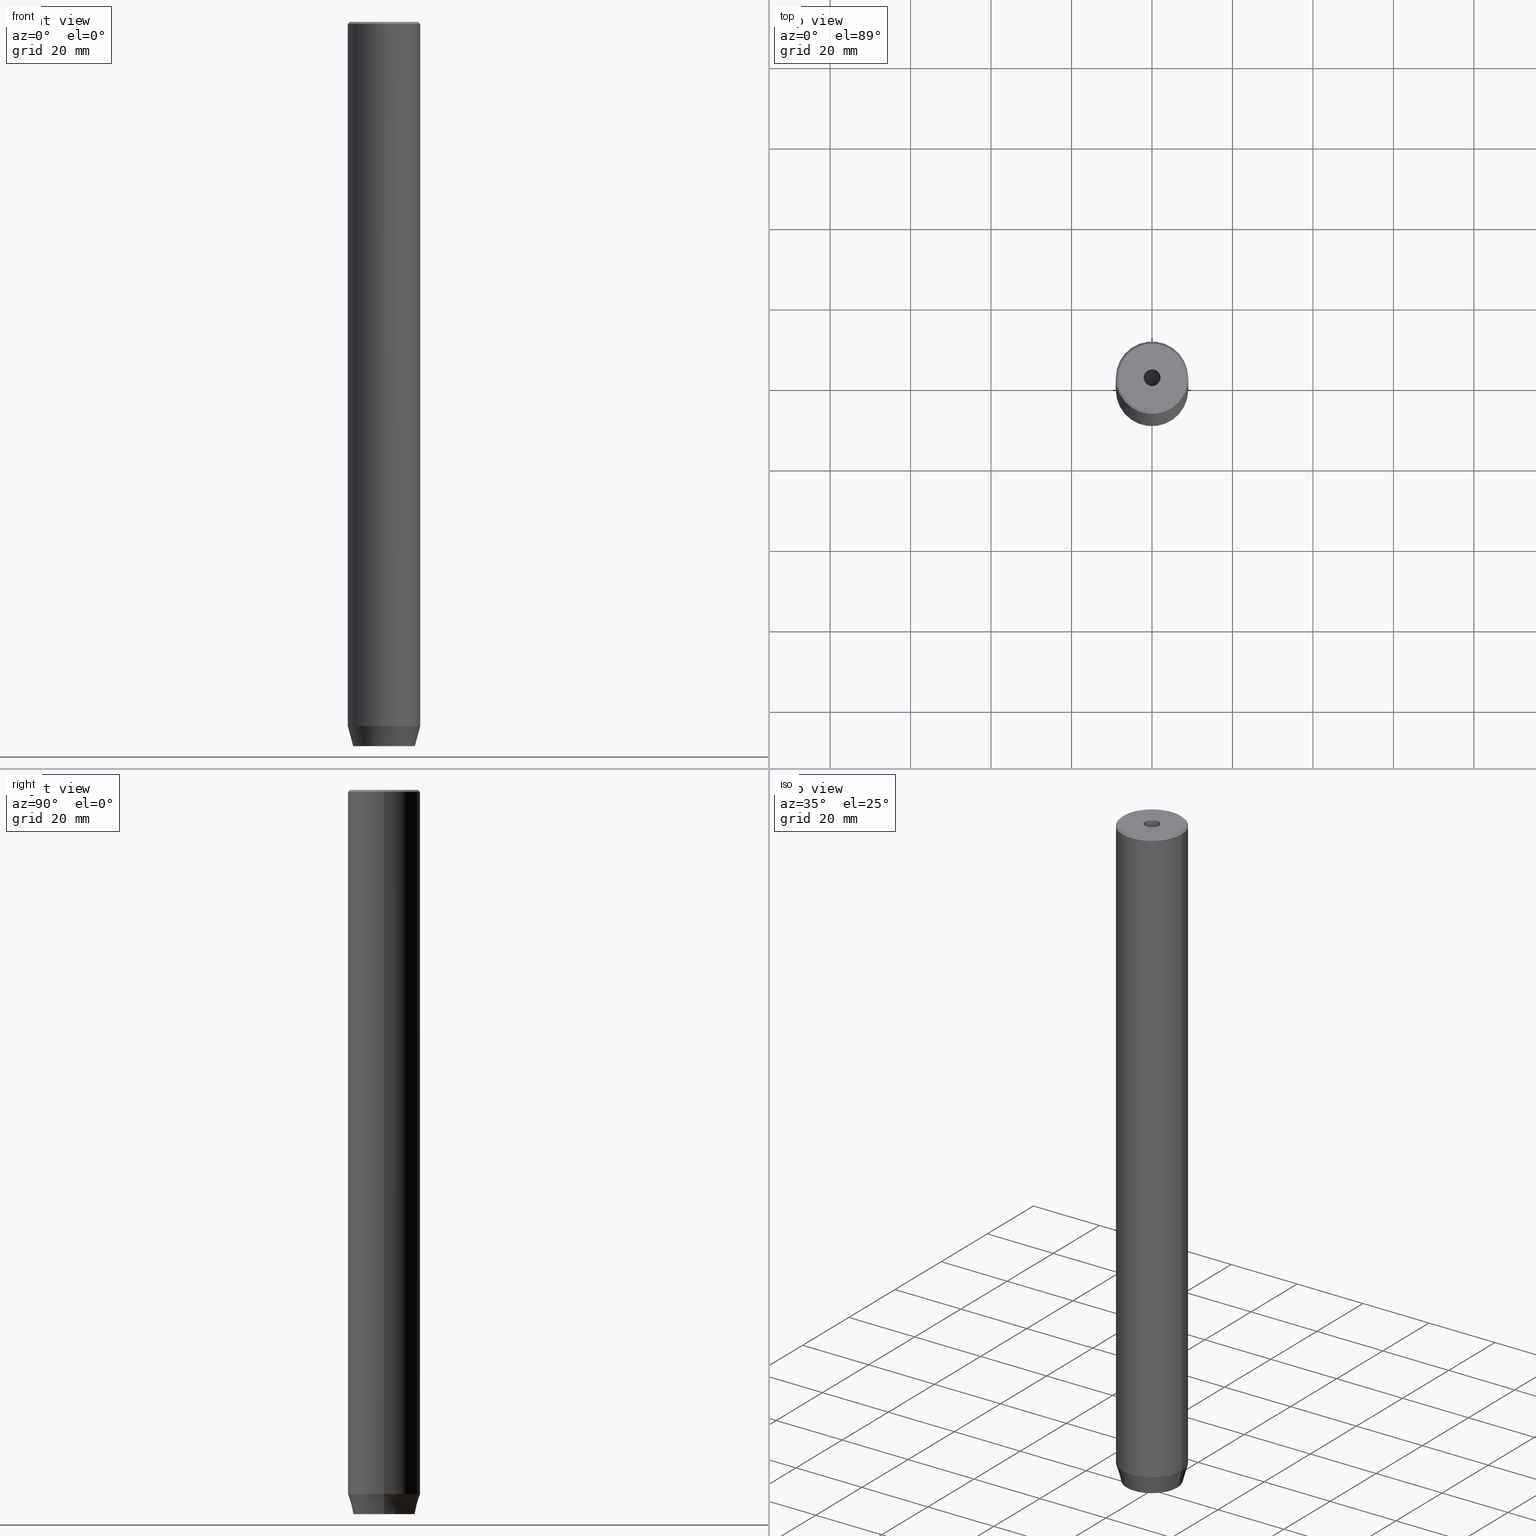
[diagram: canonical four-view strip — front | top / right | iso, engineering-drawing reading convention]
A machine part, canonical four-view strip (front | top / right | iso — engineering-drawing reading convention). The complete STEP part file that produces these views, byte-faithful:
ISO-10303-21;
HEADER;
FILE_DESCRIPTION (( 'STEP AP203' ),
    '1' );
FILE_NAME ('a137.STEP',
    '2024-01-02T19:07:23',
    ( '' ),
    ( '' ),
    'SwSTEP 2.0',
    'SolidWorks 2019',
    '' );
FILE_SCHEMA (( 'CONFIG_CONTROL_DESIGN' ));
ENDSEC;

DATA;
#1 = EDGE_CURVE ( 'NONE', #370, #378, #107, .T. ) ;
#2 = DIRECTION ( 'NONE',  ( 1.000000000000000000, 0.000000000000000000, 0.000000000000000000 ) ) ;
#3 = ORIENTED_EDGE ( 'NONE', *, *, #33, .F. ) ;
#4 = DIRECTION ( 'NONE',  ( -0.8660254037844385966, 0.5000000000000001110, 0.000000000000000000 ) ) ;
#5 = ORIENTED_EDGE ( 'NONE', *, *, #167, .F. ) ;
#6 = ORIENTED_EDGE ( 'NONE', *, *, #367, .F. ) ;
#7 = VECTOR ( 'NONE', #493, 1000.000000000000000 ) ;
#8 =( NAMED_UNIT ( * ) SI_UNIT ( $, .STERADIAN. ) SOLID_ANGLE_UNIT ( ) );
#9 = EDGE_LOOP ( 'NONE', ( #468, #83, #516, #12 ) ) ;
#10 = EDGE_CURVE ( 'NONE', #388, #80, #296, .T. ) ;
#11 = ORIENTED_EDGE ( 'NONE', *, *, #98, .F. ) ;
#12 = ORIENTED_EDGE ( 'NONE', *, *, #276, .T. ) ;
#13 = VERTEX_POINT ( 'NONE', #200 ) ;
#14 = ORIENTED_EDGE ( 'NONE', *, *, #530, .F. ) ;
#15 = ADVANCED_FACE ( 'NONE', ( #485 ), #173, .T. ) ;
#16 = CARTESIAN_POINT ( 'NONE',  ( 0.000000000000000000, 0.000000000000000000, -20.00000000000000000 ) ) ;
#17 = CARTESIAN_POINT ( 'NONE',  ( -1.499999999999999556, 2.598076211353316012, -177.1999999999999886 ) ) ;
#18 = ORIENTED_EDGE ( 'NONE', *, *, #541, .F. ) ;
#19 = VERTEX_POINT ( 'NONE', #318 ) ;
#20 = AXIS2_PLACEMENT_3D ( 'NONE', #327, #317, #364 ) ;
#21 = DIRECTION ( 'NONE',  ( -0.000000000000000000, -0.000000000000000000, 1.000000000000000000 ) ) ;
#22 = EDGE_CURVE ( 'NONE', #482, #499, #498, .T. ) ;
#23 = DIRECTION ( 'NONE',  ( -0.000000000000000000, -0.000000000000000000, 1.000000000000000000 ) ) ;
#24 = VERTEX_POINT ( 'NONE', #328 ) ;
#25 = DIRECTION ( 'NONE',  ( 0.8571673007021111124, 0.000000000000000000, 0.5150380749100562650 ) ) ;
#26 = DIRECTION ( 'NONE',  ( -0.000000000000000000, -0.000000000000000000, -1.000000000000000000 ) ) ;
#27 = AXIS2_PLACEMENT_3D ( 'NONE', #394, #562, #309 ) ;
#28 = DIRECTION ( 'NONE',  ( -0.000000000000000000, -0.000000000000000000, 1.000000000000000000 ) ) ;
#29 = DIRECTION ( 'NONE',  ( -0.5000000000000001110, -0.8660254037844385966, 0.000000000000000000 ) ) ;
#30 = FACE_OUTER_BOUND ( 'NONE', #535, .T. ) ;
#31 = CARTESIAN_POINT ( 'NONE',  ( -3.000000000000000444, -7.511572993685800087E-16, -177.1999999999999886 ) ) ;
#32 = CONICAL_SURFACE ( 'NONE', #195, 8.499999999999980460, 0.7853981633974447263 ) ;
#33 = EDGE_CURVE ( 'NONE', #266, #325, #50, .T. ) ;
#34 = DATE_TIME_ROLE ( 'classification_date' ) ;
#35 = DIRECTION ( 'NONE',  ( 0.000000000000000000, 0.000000000000000000, -1.000000000000000000 ) ) ;
#36 = ORIENTED_EDGE ( 'NONE', *, *, #402, .T. ) ;
#37 = PERSON_AND_ORGANIZATION_ROLE ( 'creator' ) ;
#38 = LINE ( 'NONE', #343, #577 ) ;
#39 = CARTESIAN_POINT ( 'NONE',  ( 0.000000000000000000, 0.000000000000000000, 0.000000000000000000 ) ) ;
#40 = EDGE_CURVE ( 'NONE', #24, #482, #228, .T. ) ;
#41 = CARTESIAN_POINT ( 'NONE',  ( -3.000000000000000888, 1.732050807568876527, -180.0000000000000000 ) ) ;
#42 = AXIS2_PLACEMENT_3D ( 'NONE', #583, #178, #539 ) ;
#43 = LINE ( 'NONE', #92, #575 ) ;
#44 = FACE_OUTER_BOUND ( 'NONE', #190, .T. ) ;
#45 = FACE_OUTER_BOUND ( 'NONE', #424, .T. ) ;
#46 = VECTOR ( 'NONE', #416, 1000.000000000000000 ) ;
#47 = EDGE_CURVE ( 'NONE', #520, #265, #547, .T. ) ;
#48 = ORIENTED_EDGE ( 'NONE', *, *, #385, .F. ) ;
#49 = CARTESIAN_POINT ( 'NONE',  ( 0.000000000000000000, 0.000000000000000000, -20.00000000000000000 ) ) ;
#50 = LINE ( 'NONE', #101, #363 ) ;
#51 = DIRECTION ( 'NONE',  ( 0.8660254037844387076, 0.4999999999999999445, 0.000000000000000000 ) ) ;
#52 = ORIENTED_EDGE ( 'NONE', *, *, #514, .F. ) ;
#53 = AXIS2_PLACEMENT_3D ( 'NONE', #497, #129, #320 ) ;
#54 = APPROVAL_PERSON_ORGANIZATION ( #393, #415, #243 ) ;
#55 = CONICAL_SURFACE ( 'NONE', #123, 2.099999999999996092, 1.029744258676652091 ) ;
#56 = ORIENTED_EDGE ( 'NONE', *, *, #145, .F. ) ;
#57 = DIRECTION ( 'NONE',  ( 1.000000000000000000, 0.000000000000000000, 0.000000000000000000 ) ) ;
#58 = ORIENTED_EDGE ( 'NONE', *, *, #235, .F. ) ;
#59 = PRODUCT ( 'a137', 'a137', '', ( #144 ) ) ;
#60 = AXIS2_PLACEMENT_3D ( 'NONE', #163, #260, #481 ) ;
#61 = CARTESIAN_POINT ( 'NONE',  ( 9.000000000000000000, 0.000000000000000000, 0.000000000000000000 ) ) ;
#62 = VERTEX_POINT ( 'NONE', #413 ) ;
#63 = EDGE_LOOP ( 'NONE', ( #58, #553 ) ) ;
#64 = DIRECTION ( 'NONE',  ( 1.000000000000000000, 0.000000000000000000, 0.000000000000000000 ) ) ;
#65 = CARTESIAN_POINT ( 'NONE',  ( 2.099999999999996092, 0.000000000000000000, -20.00000000000000000 ) ) ;
#66 = ORIENTED_EDGE ( 'NONE', *, *, #490, .F. ) ;
#67 = DATE_AND_TIME ( #438, #404 ) ;
#68 = APPROVAL_PERSON_ORGANIZATION ( #471, #457, #162 ) ;
#69 = VECTOR ( 'NONE', #199, 1000.000000000000000 ) ;
#70 = CARTESIAN_POINT ( 'NONE',  ( -5.207640850796248781E-15, 0.000000000000000000, -21.26180729995787999 ) ) ;
#71 = CYLINDRICAL_SURFACE ( 'NONE', #565, 9.000000000000000000 ) ;
#72 = CARTESIAN_POINT ( 'NONE',  ( -1.084202172485504434E-16, 3.464101615137754830, -177.1999999999999886 ) ) ;
#73 = DIRECTION ( 'NONE',  ( -0.000000000000000000, -0.000000000000000000, 1.000000000000000000 ) ) ;
#74 = LINE ( 'NONE', #358, #401 ) ;
#75 = EDGE_CURVE ( 'NONE', #19, #280, #219, .T. ) ;
#76 = CARTESIAN_POINT ( 'NONE',  ( 8.499999999999980460, 1.071565949253932744E-15, 0.000000000000000000 ) ) ;
#77 = PERSON_AND_ORGANIZATION ( #561, #96 ) ;
#78 = CARTESIAN_POINT ( 'NONE',  ( 0.000000000000000000, 3.464101615137754386, -180.0000000000000000 ) ) ;
#79 = AXIS2_PLACEMENT_3D ( 'NONE', #232, #461, #291 ) ;
#80 = VERTEX_POINT ( 'NONE', #76 ) ;
#81 = CIRCLE ( 'NONE', #27, 9.000000000000000000 ) ;
#82 = EDGE_CURVE ( 'NONE', #388, #474, #261, .T. ) ;
#83 = ORIENTED_EDGE ( 'NONE', *, *, #390, .T. ) ;
#84 = DATE_AND_TIME ( #312, #418 ) ;
#85 = DIRECTION ( 'NONE',  ( 1.000000000000000000, 0.000000000000000000, 0.000000000000000000 ) ) ;
#86 = LINE ( 'NONE', #405, #259 ) ;
#87 = LINE ( 'NONE', #277, #159 ) ;
#88 = CIRCLE ( 'NONE', #417, 9.000000000000000000 ) ;
#89 = ORIENTED_EDGE ( 'NONE', *, *, #157, .T. ) ;
#90 = DIRECTION ( 'NONE',  ( -0.000000000000000000, -0.000000000000000000, 1.000000000000000000 ) ) ;
#91 = CARTESIAN_POINT ( 'NONE',  ( -2.168404344971008868E-16, -3.464101615137754830, -177.1999999999999886 ) ) ;
#92 = CARTESIAN_POINT ( 'NONE',  ( -1.500000000000000666, -2.598076211353316456, -180.0000000000000000 ) ) ;
#93 = CC_DESIGN_PERSON_AND_ORGANIZATION_ASSIGNMENT ( #569, #114, ( #330 ) ) ;
#94 = DIRECTION ( 'NONE',  ( 0.5000000000000001110, 0.8660254037844385966, -0.000000000000000000 ) ) ;
#95 = CARTESIAN_POINT ( 'NONE',  ( 1.500000000000000222, -2.598076211353315568, -177.1999999999999886 ) ) ;
#96 = ORGANIZATION ( 'NEUR�EN�', 'NEUR�EN�', '' ) ;
#97 = VECTOR ( 'NONE', #111, 1000.000000000000000 ) ;
#98 = EDGE_CURVE ( 'NONE', #255, #520, #205, .T. ) ;
#99 = ORIENTED_EDGE ( 'NONE', *, *, #139, .F. ) ;
#100 = DIRECTION ( 'NONE',  ( -0.000000000000000000, -0.000000000000000000, 1.000000000000000000 ) ) ;
#101 = CARTESIAN_POINT ( 'NONE',  ( 1.500000000000000222, 2.598076211353315568, -177.1999999999999886 ) ) ;
#102 = ORIENTED_EDGE ( 'NONE', *, *, #556, .T. ) ;
#103 = AXIS2_PLACEMENT_3D ( 'NONE', #16, #230, #505 ) ;
#104 = CARTESIAN_POINT ( 'NONE',  ( 1.500000000000000222, 2.598076211353315568, -180.0000000000000000 ) ) ;
#105 = ORIENTED_EDGE ( 'NONE', *, *, #75, .T. ) ;
#106 = LINE ( 'NONE', #229, #376 ) ;
#107 = LINE ( 'NONE', #579, #274 ) ;
#108 = ADVANCED_FACE ( 'NONE', ( #201 ), #55, .F. ) ;
#109 = ORIENTED_EDGE ( 'NONE', *, *, #198, .T. ) ;
#110 = CIRCLE ( 'NONE', #445, 2.099999999999998757 ) ;
#111 = DIRECTION ( 'NONE',  ( -0.8571673007021111124, 1.049727191138617217E-16, 0.5150380749100562650 ) ) ;
#112 = LINE ( 'NONE', #171, #161 ) ;
#113 = DIRECTION ( 'NONE',  ( -0.000000000000000000, -0.000000000000000000, 1.000000000000000000 ) ) ;
#114 = PERSON_AND_ORGANIZATION_ROLE ( 'design_supplier' ) ;
#115 = ORIENTED_EDGE ( 'NONE', *, *, #329, .T. ) ;
#116 = FACE_OUTER_BOUND ( 'NONE', #132, .T. ) ;
#117 = ORIENTED_EDGE ( 'NONE', *, *, #244, .F. ) ;
#118 = CARTESIAN_POINT ( 'NONE',  ( -7.660254037844380193, 1.020146339021394272E-15, -180.0000000000000000 ) ) ;
#119 = EDGE_CURVE ( 'NONE', #280, #19, #532, .T. ) ;
#120 = COORDINATED_UNIVERSAL_TIME_OFFSET ( 1, 0, .AHEAD. ) ;
#121 = FACE_OUTER_BOUND ( 'NONE', #554, .T. ) ;
#122 = CARTESIAN_POINT ( 'NONE',  ( 0.000000000000000000, 0.000000000000000000, -0.5000000000000229816 ) ) ;
#123 = AXIS2_PLACEMENT_3D ( 'NONE', #207, #73, #428 ) ;
#124 = ORIENTED_EDGE ( 'NONE', *, *, #204, .F. ) ;
#125 = DIRECTION ( 'NONE',  ( -0.000000000000000000, -0.000000000000000000, 1.000000000000000000 ) ) ;
#126 = ADVANCED_FACE ( 'NONE', ( #30 ), #558, .F. ) ;
#127 = DIRECTION ( 'NONE',  ( 1.000000000000000000, 0.000000000000000000, 0.000000000000000000 ) ) ;
#128 = DIRECTION ( 'NONE',  ( -0.000000000000000000, -0.000000000000000000, 1.000000000000000000 ) ) ;
#129 = DIRECTION ( 'NONE',  ( 0.000000000000000000, -0.000000000000000000, 1.000000000000000000 ) ) ;
#130 = ORIENTED_EDGE ( 'NONE', *, *, #119, .F. ) ;
#131 = DIRECTION ( 'NONE',  ( -0.8660254037844385966, 0.5000000000000001110, 0.000000000000000000 ) ) ;
#132 = EDGE_LOOP ( 'NONE', ( #117, #248, #492, #464 ) ) ;
#133 = CIRCLE ( 'NONE', #210, 2.099999999999996092 ) ;
#134 = CC_DESIGN_PERSON_AND_ORGANIZATION_ASSIGNMENT ( #466, #151, ( #59 ) ) ;
#135 = CARTESIAN_POINT ( 'NONE',  ( 9.000000000000000000, 0.000000000000000000, -175.0000000000000000 ) ) ;
#136 = FACE_OUTER_BOUND ( 'NONE', #406, .T. ) ;
#137 = FACE_BOUND ( 'NONE', #298, .T. ) ;
#138 = ORIENTED_EDGE ( 'NONE', *, *, #426, .T. ) ;
#139 = EDGE_CURVE ( 'NONE', #240, #62, #146, .T. ) ;
#140 = CC_DESIGN_APPROVAL ( #457, ( #330 ) ) ;
#141 = LINE ( 'NONE', #379, #584 ) ;
#142 = EDGE_LOOP ( 'NONE', ( #423, #391 ) ) ;
#143 = CLOSED_SHELL ( 'NONE', ( #310, #339, #454, #214, #15, #570, #399, #192, #552, #218, #126, #334, #256, #262, #449, #486, #371, #108, #355 ) ) ;
#144 = MECHANICAL_CONTEXT ( 'NONE', #169, 'mechanical' ) ;
#145 = EDGE_CURVE ( 'NONE', #234, #266, #245, .T. ) ;
#146 = LINE ( 'NONE', #104, #69 ) ;
#147 = DIRECTION ( 'NONE',  ( -0.000000000000000000, -0.000000000000000000, 1.000000000000000000 ) ) ;
#148 = ORIENTED_EDGE ( 'NONE', *, *, #244, .T. ) ;
#149 = ORIENTED_EDGE ( 'NONE', *, *, #297, .F. ) ;
#150 =( GEOMETRIC_REPRESENTATION_CONTEXT ( 3 ) GLOBAL_UNCERTAINTY_ASSIGNED_CONTEXT ( ( #269 ) ) GLOBAL_UNIT_ASSIGNED_CONTEXT ( ( #384, #421, #8 ) ) REPRESENTATION_CONTEXT ( 'NONE', 'WORKASPACE' ) );
#151 = PERSON_AND_ORGANIZATION_ROLE ( 'design_owner' ) ;
#152 = SECURITY_CLASSIFICATION_LEVEL ( 'unclassified' ) ;
#153 = LINE ( 'NONE', #517, #578 ) ;
#154 = APPROVAL_ROLE ( '' ) ;
#155 = DIRECTION ( 'NONE',  ( -0.000000000000000000, -0.000000000000000000, -1.000000000000000000 ) ) ;
#156 = CARTESIAN_POINT ( 'NONE',  ( 0.000000000000000000, 0.000000000000000000, -175.0000000000000000 ) ) ;
#157 = EDGE_CURVE ( 'NONE', #266, #240, #153, .T. ) ;
#158 = ORIENTED_EDGE ( 'NONE', *, *, #47, .T. ) ;
#159 = VECTOR ( 'NONE', #273, 1000.000000000000000 ) ;
#160 = CARTESIAN_POINT ( 'NONE',  ( 9.000000000000000000, 0.000000000000000000, -0.5000000000000229816 ) ) ;
#161 = VECTOR ( 'NONE', #26, 1000.000000000000000 ) ;
#162 = APPROVAL_ROLE ( '' ) ;
#163 = CARTESIAN_POINT ( 'NONE',  ( 0.000000000000000000, 0.000000000000000000, 0.000000000000000000 ) ) ;
#164 = DIRECTION ( 'NONE',  ( 1.000000000000000000, 0.000000000000000000, 0.000000000000000000 ) ) ;
#165 = ORIENTED_EDGE ( 'NONE', *, *, #22, .T. ) ;
#166 = DATE_TIME_ROLE ( 'creation_date' ) ;
#167 = EDGE_CURVE ( 'NONE', #255, #247, #425, .T. ) ;
#168 = DIRECTION ( 'NONE',  ( 2.503857664561933362E-16, -1.000000000000000000, 0.000000000000000000 ) ) ;
#169 = APPLICATION_CONTEXT ( 'configuration controlled 3d designs of mechanical parts and assemblies' ) ;
#170 = ORIENTED_EDGE ( 'NONE', *, *, #350, .T. ) ;
#171 = CARTESIAN_POINT ( 'NONE',  ( 3.000000000000000000, 1.732050807568876527, -177.1999999999999886 ) ) ;
#172 = CIRCLE ( 'NONE', #279, 9.000000000000000000 ) ;
#173 = CYLINDRICAL_SURFACE ( 'NONE', #267, 9.000000000000000000 ) ;
#174 = CARTESIAN_POINT ( 'NONE',  ( 3.000000000000000000, -1.732050807568876527, -177.1999999999999886 ) ) ;
#175 = VECTOR ( 'NONE', #293, 1000.000000000000000 ) ;
#176 = CYLINDRICAL_SURFACE ( 'NONE', #344, 2.099999999999997424 ) ;
#177 = EDGE_LOOP ( 'NONE', ( #184, #130 ) ) ;
#178 = DIRECTION ( 'NONE',  ( 0.000000000000000000, 0.000000000000000000, -1.000000000000000000 ) ) ;
#179 = AXIS2_PLACEMENT_3D ( 'NONE', #270, #502, #446 ) ;
#180 = AXIS2_PLACEMENT_3D ( 'NONE', #529, #206, #477 ) ;
#181 = DIRECTION ( 'NONE',  ( -0.000000000000000000, -0.000000000000000000, -1.000000000000000000 ) ) ;
#182 = CARTESIAN_POINT ( 'NONE',  ( 3.000000000000000000, 0.000000000000000000, -177.1999999999999886 ) ) ;
#183 = CC_DESIGN_DATE_AND_TIME_ASSIGNMENT ( #340, #166, ( #519 ) ) ;
#184 = ORIENTED_EDGE ( 'NONE', *, *, #75, .F. ) ;
#185 = DIRECTION ( 'NONE',  ( 1.000000000000000000, 0.000000000000000000, 0.000000000000000000 ) ) ;
#186 = ORIENTED_EDGE ( 'NONE', *, *, #441, .T. ) ;
#187 = ORIENTED_EDGE ( 'NONE', *, *, #496, .T. ) ;
#188 = VECTOR ( 'NONE', #555, 999.9999999999998863 ) ;
#189 = DIRECTION ( 'NONE',  ( 0.000000000000000000, 0.000000000000000000, 1.000000000000000000 ) ) ;
#190 = EDGE_LOOP ( 'NONE', ( #349, #377, #6, #422 ) ) ;
#191 = VERTEX_POINT ( 'NONE', #304 ) ;
#192 = ADVANCED_FACE ( 'NONE', ( #476 ), #71, .T. ) ;
#193 = CARTESIAN_POINT ( 'NONE',  ( 0.000000000000000000, 0.000000000000000000, 0.000000000000000000 ) ) ;
#194 = EDGE_LOOP ( 'NONE', ( #549, #272, #473, #348, #373, #383 ) ) ;
#195 = AXIS2_PLACEMENT_3D ( 'NONE', #442, #35, #559 ) ;
#196 = ORIENTED_EDGE ( 'NONE', *, *, #237, .F. ) ;
#197 = FACE_OUTER_BOUND ( 'NONE', #294, .T. ) ;
#198 = EDGE_CURVE ( 'NONE', #474, #282, #346, .T. ) ;
#199 = DIRECTION ( 'NONE',  ( 0.8660254037844385966, -0.5000000000000001110, 0.000000000000000000 ) ) ;
#200 = CARTESIAN_POINT ( 'NONE',  ( -2.099999999999998757, 2.571758278209440478E-16, -1.990051048614449116E-16 ) ) ;
#201 = FACE_OUTER_BOUND ( 'NONE', #335, .T. ) ;
#202 = COORDINATED_UNIVERSAL_TIME_OFFSET ( 1, 0, .AHEAD. ) ;
#203 = DIRECTION ( 'NONE',  ( -0.000000000000000000, -0.000000000000000000, 1.000000000000000000 ) ) ;
#204 = EDGE_CURVE ( 'NONE', #191, #234, #525, .T. ) ;
#205 = LINE ( 'NONE', #65, #302 ) ;
#206 = DIRECTION ( 'NONE',  ( 0.5000000000000001110, -0.8660254037844385966, 0.000000000000000000 ) ) ;
#207 = CARTESIAN_POINT ( 'NONE',  ( 0.000000000000000000, 0.000000000000000000, -20.00000000000000000 ) ) ;
#208 = DIRECTION ( 'NONE',  ( -0.8660254037844387076, -0.4999999999999999445, 0.000000000000000000 ) ) ;
#209 = DIRECTION ( 'NONE',  ( -0.000000000000000000, -0.000000000000000000, 1.000000000000000000 ) ) ;
#210 = AXIS2_PLACEMENT_3D ( 'NONE', #300, #403, #434 ) ;
#211 = ORIENTED_EDGE ( 'NONE', *, *, #222, .F. ) ;
#212 = APPROVAL_STATUS ( 'not_yet_approved' ) ;
#213 = DIRECTION ( 'NONE',  ( 0.000000000000000000, -1.000000000000000000, 0.000000000000000000 ) ) ;
#214 = ADVANCED_FACE ( 'NONE', ( #250 ), #475, .T. ) ;
#215 = DIRECTION ( 'NONE',  ( -0.2588190451025214611, 3.169619151431774186E-17, 0.9659258262890679791 ) ) ;
#216 = FACE_OUTER_BOUND ( 'NONE', #194, .T. ) ;
#217 = FACE_OUTER_BOUND ( 'NONE', #453, .T. ) ;
#218 = ADVANCED_FACE ( 'NONE', ( #392 ), #32, .T. ) ;
#219 = CIRCLE ( 'NONE', #419, 7.660254037844380193 ) ;
#220 = ORIENTED_EDGE ( 'NONE', *, *, #235, .T. ) ;
#221 = DIRECTION ( 'NONE',  ( -0.000000000000000000, -0.000000000000000000, 1.000000000000000000 ) ) ;
#222 = EDGE_CURVE ( 'NONE', #325, #62, #112, .T. ) ;
#223 = PLANE ( 'NONE',  #257 ) ;
#224 = ORIENTED_EDGE ( 'NONE', *, *, #402, .F. ) ;
#225 = EDGE_CURVE ( 'NONE', #62, #227, #38, .T. ) ;
#226 = CARTESIAN_POINT ( 'NONE',  ( -3.000000000000000000, -1.732050807568877859, -180.0000000000000000 ) ) ;
#227 = VERTEX_POINT ( 'NONE', #521 ) ;
#228 = LINE ( 'NONE', #95, #175 ) ;
#229 = CARTESIAN_POINT ( 'NONE',  ( -1.499999999999999556, 2.598076211353316012, -180.0000000000000000 ) ) ;
#230 = DIRECTION ( 'NONE',  ( -0.000000000000000000, -0.000000000000000000, 1.000000000000000000 ) ) ;
#231 = ORIENTED_EDGE ( 'NONE', *, *, #1, .F. ) ;
#232 = CARTESIAN_POINT ( 'NONE',  ( 0.000000000000000000, 7.660254037844380193, -180.0000000000000000 ) ) ;
#233 = ORIENTED_EDGE ( 'NONE', *, *, #530, .T. ) ;
#234 = VERTEX_POINT ( 'NONE', #533 ) ;
#235 = EDGE_CURVE ( 'NONE', #265, #13, #331, .T. ) ;
#236 = CARTESIAN_POINT ( 'NONE',  ( 0.000000000000000000, 0.000000000000000000, -175.0000000000000000 ) ) ;
#237 = EDGE_CURVE ( 'NONE', #280, #432, #74, .T. ) ;
#238 = ORIENTED_EDGE ( 'NONE', *, *, #157, .F. ) ;
#239 = CARTESIAN_POINT ( 'NONE',  ( 0.000000000000000000, 0.000000000000000000, -175.0000000000000000 ) ) ;
#240 = VERTEX_POINT ( 'NONE', #78 ) ;
#241 = CC_DESIGN_APPROVAL ( #537, ( #519 ) ) ;
#242 = AXIS2_PLACEMENT_3D ( 'NONE', #17, #433, #208 ) ;
#243 = APPROVAL_ROLE ( '' ) ;
#244 = EDGE_CURVE ( 'NONE', #247, #520, #133, .T. ) ;
#245 = LINE ( 'NONE', #292, #188 ) ;
#246 = CARTESIAN_POINT ( 'NONE',  ( -2.099999999999996092, 2.571758278209436534E-16, -20.00000000000000000 ) ) ;
#247 = VERTEX_POINT ( 'NONE', #246 ) ;
#248 = ORIENTED_EDGE ( 'NONE', *, *, #297, .T. ) ;
#249 = CARTESIAN_POINT ( 'NONE',  ( 0.000000000000000000, 0.000000000000000000, 0.000000000000000000 ) ) ;
#250 = FACE_OUTER_BOUND ( 'NONE', #412, .T. ) ;
#251 = VECTOR ( 'NONE', #147, 1000.000000000000000 ) ;
#252 = APPROVAL_STATUS ( 'not_yet_approved' ) ;
#253 = CARTESIAN_POINT ( 'NONE',  ( 0.000000000000000000, 0.000000000000000000, -180.0000000000000000 ) ) ;
#254 = LINE ( 'NONE', #436, #351 ) ;
#255 = VERTEX_POINT ( 'NONE', #70 ) ;
#256 = ADVANCED_FACE ( 'NONE', ( #121 ), #489, .F. ) ;
#257 = AXIS2_PLACEMENT_3D ( 'NONE', #409, #94, #4 ) ;
#258 = APPROVAL_STATUS ( 'not_yet_approved' ) ;
#259 = VECTOR ( 'NONE', #268, 1000.000000000000000 ) ;
#260 = DIRECTION ( 'NONE',  ( -0.000000000000000000, -0.000000000000000000, 1.000000000000000000 ) ) ;
#261 = LINE ( 'NONE', #431, #487 ) ;
#262 = ADVANCED_FACE ( 'NONE', ( #305 ), #573, .F. ) ;
#263 = SHAPE_DEFINITION_REPRESENTATION ( #550, #283 ) ;
#264 = CARTESIAN_POINT ( 'NONE',  ( 0.000000000000000000, 0.000000000000000000, -1.990051048614449116E-16 ) ) ;
#265 = VERTEX_POINT ( 'NONE', #397 ) ;
#266 = VERTEX_POINT ( 'NONE', #72 ) ;
#267 = AXIS2_PLACEMENT_3D ( 'NONE', #39, #128, #322 ) ;
#268 = DIRECTION ( 'NONE',  ( -0.8660254037844385966, -0.5000000000000001110, 0.000000000000000000 ) ) ;
#269 = UNCERTAINTY_MEASURE_WITH_UNIT (LENGTH_MEASURE( 1.000000000000000082E-05 ), #384, 'distance_accuracy_value', 'NONE');
#270 = CARTESIAN_POINT ( 'NONE',  ( 3.000000000000000000, 0.000000000000000000, -177.1999999999999886 ) ) ;
#271 = LOCAL_TIME ( 20, 7, 23.00000000000000000, #483 ) ;
#272 = ORIENTED_EDGE ( 'NONE', *, *, #33, .T. ) ;
#273 = DIRECTION ( 'NONE',  ( -0.000000000000000000, -0.000000000000000000, -1.000000000000000000 ) ) ;
#274 = VECTOR ( 'NONE', #582, 1000.000000000000000 ) ;
#275 = DIRECTION ( 'NONE',  ( 0.000000000000000000, -1.000000000000000000, 0.000000000000000000 ) ) ;
#276 = EDGE_CURVE ( 'NONE', #282, #474, #81, .T. ) ;
#277 = CARTESIAN_POINT ( 'NONE',  ( -3.000000000000000000, -1.732050807568877859, -177.1999999999999886 ) ) ;
#278 = ORIENTED_EDGE ( 'NONE', *, *, #385, .T. ) ;
#279 = AXIS2_PLACEMENT_3D ( 'NONE', #239, #542, #281 ) ;
#280 = VERTEX_POINT ( 'NONE', #118 ) ;
#281 = DIRECTION ( 'NONE',  ( 1.000000000000000000, 0.000000000000000000, 0.000000000000000000 ) ) ;
#282 = VERTEX_POINT ( 'NONE', #160 ) ;
#283 = ADVANCED_BREP_SHAPE_REPRESENTATION ( 'a137', ( #495, #287 ), #150 ) ;
#284 = DIRECTION ( 'NONE',  ( 0.000000000000000000, 0.000000000000000000, -1.000000000000000000 ) ) ;
#285 = EDGE_LOOP ( 'NONE', ( #102, #138, #109, #465 ) ) ;
#286 = CC_DESIGN_PERSON_AND_ORGANIZATION_ASSIGNMENT ( #77, #37, ( #519 ) ) ;
#287 = AXIS2_PLACEMENT_3D ( 'NONE', #507, #189, #380 ) ;
#288 = ORIENTED_EDGE ( 'NONE', *, *, #441, .F. ) ;
#289 = ORIENTED_EDGE ( 'NONE', *, *, #395, .T. ) ;
#290 = AXIS2_PLACEMENT_3D ( 'NONE', #354, #29, #430 ) ;
#291 = DIRECTION ( 'NONE',  ( -1.000000000000000000, 0.000000000000000000, -0.000000000000000000 ) ) ;
#292 = CARTESIAN_POINT ( 'NONE',  ( -1.499999999999999556, 2.598076211353316012, -177.1999999999999886 ) ) ;
#293 = DIRECTION ( 'NONE',  ( -0.8660254037844385966, -0.5000000000000001110, 0.000000000000000000 ) ) ;
#294 = EDGE_LOOP ( 'NONE', ( #196, #368, #233, #301 ) ) ;
#295 = DIRECTION ( 'NONE',  ( 1.000000000000000000, 0.000000000000000000, 0.000000000000000000 ) ) ;
#296 = CIRCLE ( 'NONE', #443, 8.499999999999980460 ) ;
#297 = EDGE_CURVE ( 'NONE', #247, #13, #347, .T. ) ;
#298 = EDGE_LOOP ( 'NONE', ( #508, #231, #360, #224, #470, #99 ) ) ;
#299 = COORDINATED_UNIVERSAL_TIME_OFFSET ( 1, 0, .AHEAD. ) ;
#300 = CARTESIAN_POINT ( 'NONE',  ( 0.000000000000000000, 0.000000000000000000, -20.00000000000000000 ) ) ;
#301 = ORIENTED_EDGE ( 'NONE', *, *, #390, .F. ) ;
#302 = VECTOR ( 'NONE', #25, 1000.000000000000000 ) ;
#303 = CALENDAR_DATE ( 2024, 2, 1 ) ;
#304 = CARTESIAN_POINT ( 'NONE',  ( -3.000000000000000000, -1.732050807568877859, -177.1999999999999886 ) ) ;
#305 = FACE_OUTER_BOUND ( 'NONE', #323, .T. ) ;
#306 = PERSON_AND_ORGANIZATION_ROLE ( 'classification_officer' ) ;
#307 = CYLINDRICAL_SURFACE ( 'NONE', #60, 2.099999999999997424 ) ;
#308 = DIRECTION ( 'NONE',  ( 1.000000000000000000, 0.000000000000000000, 0.000000000000000000 ) ) ;
#309 = DIRECTION ( 'NONE',  ( 1.000000000000000000, 0.000000000000000000, 0.000000000000000000 ) ) ;
#310 = ADVANCED_FACE ( 'NONE', ( #116 ), #307, .F. ) ;
#311 = VECTOR ( 'NONE', #275, 1000.000000000000000 ) ;
#312 = CALENDAR_DATE ( 2024, 2, 1 ) ;
#313 = DIRECTION ( 'NONE',  ( -1.000000000000000000, -2.503857664561933362E-16, 0.000000000000000000 ) ) ;
#314 = VECTOR ( 'NONE', #567, 1000.000000000000000 ) ;
#315 = ORIENTED_EDGE ( 'NONE', *, *, #40, .F. ) ;
#316 = ORIENTED_EDGE ( 'NONE', *, *, #82, .T. ) ;
#317 = DIRECTION ( 'NONE',  ( 0.000000000000000000, 0.000000000000000000, -1.000000000000000000 ) ) ;
#318 = CARTESIAN_POINT ( 'NONE',  ( 7.660254037844380193, 0.000000000000000000, -180.0000000000000000 ) ) ;
#319 = CC_DESIGN_DATE_AND_TIME_ASSIGNMENT ( #557, #34, ( #523 ) ) ;
#320 = DIRECTION ( 'NONE',  ( 1.000000000000000000, 0.000000000000000000, 0.000000000000000000 ) ) ;
#321 = PLANE ( 'NONE',  #20 ) ;
#322 = DIRECTION ( 'NONE',  ( 1.000000000000000000, 0.000000000000000000, 0.000000000000000000 ) ) ;
#323 = EDGE_LOOP ( 'NONE', ( #36, #501, #315, #289 ) ) ;
#324 = CARTESIAN_POINT ( 'NONE',  ( -9.000000000000000000, 1.102182119232617714E-15, -0.5000000000000229816 ) ) ;
#325 = VERTEX_POINT ( 'NONE', #439 ) ;
#326 = ORIENTED_EDGE ( 'NONE', *, *, #329, .F. ) ;
#327 = CARTESIAN_POINT ( 'NONE',  ( 0.000000000000000000, 0.000000000000000000, -177.1999999999999886 ) ) ;
#328 = CARTESIAN_POINT ( 'NONE',  ( 3.000000000000000000, -1.732050807568876527, -177.1999999999999886 ) ) ;
#329 = EDGE_CURVE ( 'NONE', #234, #378, #254, .T. ) ;
#330 = PRODUCT_DEFINITION_FORMATION_WITH_SPECIFIED_SOURCE ( 'LIBOVOLN�', '', #59, .NOT_KNOWN. ) ;
#331 = CIRCLE ( 'NONE', #586, 2.099999999999998757 ) ;
#332 = ORIENTED_EDGE ( 'NONE', *, *, #237, .T. ) ;
#333 = PLANE ( 'NONE',  #79 ) ;
#334 = ADVANCED_FACE ( 'NONE', ( #527 ), #400, .F. ) ;
#335 = EDGE_LOOP ( 'NONE', ( #5, #440, #512 ) ) ;
#336 = CARTESIAN_POINT ( 'NONE',  ( -2.168404344971008868E-16, -3.464101615137754830, -180.0000000000000000 ) ) ;
#337 = AXIS2_PLACEMENT_3D ( 'NONE', #193, #21, #185 ) ;
#338 = APPLICATION_PROTOCOL_DEFINITION ( 'international standard', 'config_control_design', 1994, #467 ) ;
#339 = ADVANCED_FACE ( 'NONE', ( #361 ), #522, .F. ) ;
#340 = DATE_AND_TIME ( #303, #576 ) ;
#341 = APPROVAL_DATE_TIME ( #67, #457 ) ;
#342 = CARTESIAN_POINT ( 'NONE',  ( -2.099999999999996092, 2.571758278209436534E-16, -20.00000000000000000 ) ) ;
#343 = CARTESIAN_POINT ( 'NONE',  ( 3.000000000000000000, 0.000000000000000000, -180.0000000000000000 ) ) ;
#344 = AXIS2_PLACEMENT_3D ( 'NONE', #374, #534, #127 ) ;
#345 = CC_DESIGN_APPROVAL ( #415, ( #523 ) ) ;
#346 = CIRCLE ( 'NONE', #511, 9.000000000000000000 ) ;
#347 = LINE ( 'NONE', #526, #479 ) ;
#348 = ORIENTED_EDGE ( 'NONE', *, *, #40, .T. ) ;
#349 = ORIENTED_EDGE ( 'NONE', *, *, #225, .T. ) ;
#350 = EDGE_CURVE ( 'NONE', #499, #370, #43, .T. ) ;
#351 = VECTOR ( 'NONE', #352, 1000.000000000000000 ) ;
#352 = DIRECTION ( 'NONE',  ( -0.000000000000000000, -0.000000000000000000, -1.000000000000000000 ) ) ;
#353 = PERSON_AND_ORGANIZATION ( #561, #96 ) ;
#354 = CARTESIAN_POINT ( 'NONE',  ( -1.500000000000000666, -2.598076211353316456, -177.1999999999999886 ) ) ;
#355 = ADVANCED_FACE ( 'NONE', ( #136 ), #176, .F. ) ;
#356 = ORIENTED_EDGE ( 'NONE', *, *, #556, .F. ) ;
#357 = VECTOR ( 'NONE', #581, 1000.000000000000114 ) ;
#358 = CARTESIAN_POINT ( 'NONE',  ( -9.000000000000000000, 1.102182119232617714E-15, -175.0000000000000000 ) ) ;
#359 = CC_DESIGN_PERSON_AND_ORGANIZATION_ASSIGNMENT ( #353, #435, ( #330 ) ) ;
#360 = ORIENTED_EDGE ( 'NONE', *, *, #350, .F. ) ;
#361 = FACE_OUTER_BOUND ( 'NONE', #452, .T. ) ;
#362 = EDGE_LOOP ( 'NONE', ( #411, #326, #124, #186 ) ) ;
#363 = VECTOR ( 'NONE', #463, 1000.000000000000000 ) ;
#364 = DIRECTION ( 'NONE',  ( -1.000000000000000000, 0.000000000000000000, -0.000000000000000000 ) ) ;
#365 = DIRECTION ( 'NONE',  ( 1.000000000000000000, 0.000000000000000000, 0.000000000000000000 ) ) ;
#366 = CARTESIAN_POINT ( 'NONE',  ( 0.000000000000000000, 0.000000000000000000, 0.000000000000000000 ) ) ;
#367 = EDGE_CURVE ( 'NONE', #325, #24, #538, .T. ) ;
#368 = ORIENTED_EDGE ( 'NONE', *, *, #119, .T. ) ;
#369 = LINE ( 'NONE', #408, #357 ) ;
#370 = VERTEX_POINT ( 'NONE', #226 ) ;
#371 = ADVANCED_FACE ( 'NONE', ( #216 ), #321, .T. ) ;
#372 = FACE_OUTER_BOUND ( 'NONE', #142, .T. ) ;
#373 = ORIENTED_EDGE ( 'NONE', *, *, #541, .T. ) ;
#374 = CARTESIAN_POINT ( 'NONE',  ( 0.000000000000000000, 0.000000000000000000, 0.000000000000000000 ) ) ;
#375 = FACE_OUTER_BOUND ( 'NONE', #177, .T. ) ;
#376 = VECTOR ( 'NONE', #51, 999.9999999999998863 ) ;
#377 = ORIENTED_EDGE ( 'NONE', *, *, #395, .F. ) ;
#378 = VERTEX_POINT ( 'NONE', #41 ) ;
#379 = CARTESIAN_POINT ( 'NONE',  ( 9.000000000000000000, 0.000000000000000000, -175.0000000000000000 ) ) ;
#380 = DIRECTION ( 'NONE',  ( 1.000000000000000000, 0.000000000000000000, 0.000000000000000000 ) ) ;
#381 = ORIENTED_EDGE ( 'NONE', *, *, #10, .F. ) ;
#382 = ORIENTED_EDGE ( 'NONE', *, *, #139, .T. ) ;
#383 = ORIENTED_EDGE ( 'NONE', *, *, #204, .T. ) ;
#384 =( LENGTH_UNIT ( ) NAMED_UNIT ( * ) SI_UNIT ( .MILLI., .METRE. ) );
#385 = EDGE_CURVE ( 'NONE', #80, #282, #369, .T. ) ;
#386 = ORIENTED_EDGE ( 'NONE', *, *, #276, .F. ) ;
#387 = AXIS2_PLACEMENT_3D ( 'NONE', #236, #100, #295 ) ;
#388 = VERTEX_POINT ( 'NONE', #407 ) ;
#389 = APPROVAL_DATE_TIME ( #515, #537 ) ;
#390 = EDGE_CURVE ( 'NONE', #432, #460, #88, .T. ) ;
#391 = ORIENTED_EDGE ( 'NONE', *, *, #514, .T. ) ;
#392 = FACE_OUTER_BOUND ( 'NONE', #478, .T. ) ;
#393 = PERSON_AND_ORGANIZATION ( #561, #96 ) ;
#394 = CARTESIAN_POINT ( 'NONE',  ( 0.000000000000000000, 0.000000000000000000, -0.5000000000000229816 ) ) ;
#395 = EDGE_CURVE ( 'NONE', #24, #227, #455, .T. ) ;
#396 = AXIS2_PLACEMENT_3D ( 'NONE', #253, #23, #510 ) ;
#397 = CARTESIAN_POINT ( 'NONE',  ( 2.099999999999998757, 0.000000000000000000, -1.990051048614449116E-16 ) ) ;
#398 = COORDINATED_UNIVERSAL_TIME_OFFSET ( 1, 0, .AHEAD. ) ;
#399 = ADVANCED_FACE ( 'NONE', ( #491, #372 ), #451, .T. ) ;
#400 = PLANE ( 'NONE',  #450 ) ;
#401 = VECTOR ( 'NONE', #215, 1000.000000000000114 ) ;
#402 = EDGE_CURVE ( 'NONE', #227, #499, #86, .T. ) ;
#403 = DIRECTION ( 'NONE',  ( -0.000000000000000000, -0.000000000000000000, 1.000000000000000000 ) ) ;
#404 = LOCAL_TIME ( 20, 7, 23.00000000000000000, #202 ) ;
#405 = CARTESIAN_POINT ( 'NONE',  ( 1.500000000000000222, -2.598076211353315568, -180.0000000000000000 ) ) ;
#406 = EDGE_LOOP ( 'NONE', ( #149, #66, #158, #220 ) ) ;
#407 = CARTESIAN_POINT ( 'NONE',  ( -8.499999999999980460, 0.000000000000000000, 0.000000000000000000 ) ) ;
#408 = CARTESIAN_POINT ( 'NONE',  ( 8.499999999999980460, 1.040949779275247773E-15, 0.000000000000000000 ) ) ;
#409 = CARTESIAN_POINT ( 'NONE',  ( 1.500000000000000222, 2.598076211353315568, -177.1999999999999886 ) ) ;
#410 = PLANE ( 'NONE',  #179 ) ;
#411 = ORIENTED_EDGE ( 'NONE', *, *, #1, .T. ) ;
#412 = EDGE_LOOP ( 'NONE', ( #105, #332, #356, #14 ) ) ;
#413 = CARTESIAN_POINT ( 'NONE',  ( 3.000000000000000000, 1.732050807568876527, -180.0000000000000000 ) ) ;
#414 = LINE ( 'NONE', #543, #46 ) ;
#415 = APPROVAL ( #252, 'NEUR�EN�' ) ;
#416 = DIRECTION ( 'NONE',  ( -0.8660254037844385966, 0.5000000000000001110, 0.000000000000000000 ) ) ;
#417 = AXIS2_PLACEMENT_3D ( 'NONE', #444, #90, #587 ) ;
#418 = LOCAL_TIME ( 20, 7, 23.00000000000000000, #120 ) ;
#419 = AXIS2_PLACEMENT_3D ( 'NONE', #518, #125, #308 ) ;
#420 = AXIS2_PLACEMENT_3D ( 'NONE', #156, #203, #484 ) ;
#421 =( NAMED_UNIT ( * ) PLANE_ANGLE_UNIT ( ) SI_UNIT ( $, .RADIAN. ) );
#422 = ORIENTED_EDGE ( 'NONE', *, *, #222, .T. ) ;
#423 = ORIENTED_EDGE ( 'NONE', *, *, #10, .T. ) ;
#424 = EDGE_LOOP ( 'NONE', ( #382, #211, #3, #89 ) ) ;
#425 = LINE ( 'NONE', #342, #97 ) ;
#426 = EDGE_CURVE ( 'NONE', #432, #474, #540, .T. ) ;
#427 = LINE ( 'NONE', #61, #564 ) ;
#428 = DIRECTION ( 'NONE',  ( 1.000000000000000000, 0.000000000000000000, 0.000000000000000000 ) ) ;
#429 = APPROVAL_PERSON_ORGANIZATION ( #528, #537, #154 ) ;
#430 = DIRECTION ( 'NONE',  ( 0.8660254037844385966, -0.5000000000000001110, 0.000000000000000000 ) ) ;
#431 = CARTESIAN_POINT ( 'NONE',  ( -8.499999999999980460, 0.000000000000000000, 0.000000000000000000 ) ) ;
#432 = VERTEX_POINT ( 'NONE', #447 ) ;
#433 = DIRECTION ( 'NONE',  ( -0.4999999999999999445, 0.8660254037844387076, 0.000000000000000000 ) ) ;
#434 = DIRECTION ( 'NONE',  ( 1.000000000000000000, 0.000000000000000000, 0.000000000000000000 ) ) ;
#435 = PERSON_AND_ORGANIZATION_ROLE ( 'creator' ) ;
#436 = CARTESIAN_POINT ( 'NONE',  ( -3.000000000000000888, 1.732050807568876527, -177.1999999999999886 ) ) ;
#437 = CIRCLE ( 'NONE', #337, 8.499999999999980460 ) ;
#438 = CALENDAR_DATE ( 2024, 2, 1 ) ;
#439 = CARTESIAN_POINT ( 'NONE',  ( 3.000000000000000000, 1.732050807568876527, -177.1999999999999886 ) ) ;
#440 = ORIENTED_EDGE ( 'NONE', *, *, #98, .T. ) ;
#441 = EDGE_CURVE ( 'NONE', #191, #370, #87, .T. ) ;
#442 = CARTESIAN_POINT ( 'NONE',  ( 0.000000000000000000, 0.000000000000000000, 0.000000000000000000 ) ) ;
#443 = AXIS2_PLACEMENT_3D ( 'NONE', #366, #113, #64 ) ;
#444 = CARTESIAN_POINT ( 'NONE',  ( 0.000000000000000000, 0.000000000000000000, -175.0000000000000000 ) ) ;
#445 = AXIS2_PLACEMENT_3D ( 'NONE', #458, #506, #57 ) ;
#446 = DIRECTION ( 'NONE',  ( -0.000000000000000000, 0.000000000000000000, -1.000000000000000000 ) ) ;
#447 = CARTESIAN_POINT ( 'NONE',  ( -9.000000000000000000, 1.102182119232617714E-15, -175.0000000000000000 ) ) ;
#448 = ORIENTED_EDGE ( 'NONE', *, *, #82, .F. ) ;
#449 = ADVANCED_FACE ( 'NONE', ( #44 ), #410, .F. ) ;
#450 = AXIS2_PLACEMENT_3D ( 'NONE', #571, #313, #168 ) ;
#451 = PLANE ( 'NONE',  #53 ) ;
#452 = EDGE_LOOP ( 'NONE', ( #11, #572, #148 ) ) ;
#453 = EDGE_LOOP ( 'NONE', ( #52, #278, #548, #448 ) ) ;
#454 = ADVANCED_FACE ( 'NONE', ( #217 ), #585, .T. ) ;
#455 = LINE ( 'NONE', #174, #563 ) ;
#456 = CARTESIAN_POINT ( 'NONE',  ( 2.099999999999997424, 0.000000000000000000, 0.000000000000000000 ) ) ;
#457 = APPROVAL ( #258, 'NEUR�EN�' ) ;
#458 = CARTESIAN_POINT ( 'NONE',  ( 0.000000000000000000, 0.000000000000000000, -1.990051048614449116E-16 ) ) ;
#459 = DIRECTION ( 'NONE',  ( -0.000000000000000000, -0.000000000000000000, 1.000000000000000000 ) ) ;
#460 = VERTEX_POINT ( 'NONE', #135 ) ;
#461 = DIRECTION ( 'NONE',  ( 0.000000000000000000, 0.000000000000000000, -1.000000000000000000 ) ) ;
#462 = CIRCLE ( 'NONE', #103, 2.099999999999996092 ) ;
#463 = DIRECTION ( 'NONE',  ( 0.8660254037844385966, -0.5000000000000001110, 0.000000000000000000 ) ) ;
#464 = ORIENTED_EDGE ( 'NONE', *, *, #47, .F. ) ;
#465 = ORIENTED_EDGE ( 'NONE', *, *, #503, .F. ) ;
#466 = PERSON_AND_ORGANIZATION ( #561, #96 ) ;
#467 = APPLICATION_CONTEXT ( 'configuration controlled 3d designs of mechanical parts and assemblies' ) ;
#468 = ORIENTED_EDGE ( 'NONE', *, *, #426, .F. ) ;
#469 = DIRECTION ( 'NONE',  ( 0.2588190451025214611, 0.000000000000000000, 0.9659258262890679791 ) ) ;
#470 = ORIENTED_EDGE ( 'NONE', *, *, #225, .F. ) ;
#471 = PERSON_AND_ORGANIZATION ( #561, #96 ) ;
#472 = DIRECTION ( 'NONE',  ( -0.000000000000000000, -0.000000000000000000, 1.000000000000000000 ) ) ;
#473 = ORIENTED_EDGE ( 'NONE', *, *, #367, .T. ) ;
#474 = VERTEX_POINT ( 'NONE', #324 ) ;
#475 = CONICAL_SURFACE ( 'NONE', #420, 9.000000000000000000, 0.2617993877991502405 ) ;
#476 = FACE_OUTER_BOUND ( 'NONE', #9, .T. ) ;
#477 = DIRECTION ( 'NONE',  ( 0.8660254037844385966, 0.5000000000000001110, 0.000000000000000000 ) ) ;
#478 = EDGE_LOOP ( 'NONE', ( #48, #381, #316, #386 ) ) ;
#479 = VECTOR ( 'NONE', #472, 1000.000000000000000 ) ;
#480 = APPROVAL_DATE_TIME ( #84, #415 ) ;
#481 = DIRECTION ( 'NONE',  ( 1.000000000000000000, 0.000000000000000000, 0.000000000000000000 ) ) ;
#482 = VERTEX_POINT ( 'NONE', #500 ) ;
#483 = COORDINATED_UNIVERSAL_TIME_OFFSET ( 1, 0, .AHEAD. ) ;
#484 = DIRECTION ( 'NONE',  ( 1.000000000000000000, 0.000000000000000000, 0.000000000000000000 ) ) ;
#485 = FACE_OUTER_BOUND ( 'NONE', #285, .T. ) ;
#486 = ADVANCED_FACE ( 'NONE', ( #45 ), #223, .F. ) ;
#487 = VECTOR ( 'NONE', #524, 1000.000000000000114 ) ;
#488 = CALENDAR_DATE ( 2024, 2, 1 ) ;
#489 = PLANE ( 'NONE',  #290 ) ;
#490 = EDGE_CURVE ( 'NONE', #520, #247, #462, .T. ) ;
#491 = FACE_BOUND ( 'NONE', #63, .T. ) ;
#492 = ORIENTED_EDGE ( 'NONE', *, *, #574, .T. ) ;
#493 = DIRECTION ( 'NONE',  ( -0.000000000000000000, -0.000000000000000000, 1.000000000000000000 ) ) ;
#494 = CC_DESIGN_SECURITY_CLASSIFICATION ( #523, ( #330 ) ) ;
#495 = MANIFOLD_SOLID_BREP ( 'Vrt�k z�vitn�ku pro M5 z�vit1', #143 ) ;
#496 = EDGE_CURVE ( 'NONE', #378, #240, #106, .T. ) ;
#497 = CARTESIAN_POINT ( 'NONE',  ( 0.000000000000000000, 0.000000000000000000, 0.000000000000000000 ) ) ;
#498 = LINE ( 'NONE', #91, #536 ) ;
#499 = VERTEX_POINT ( 'NONE', #336 ) ;
#500 = CARTESIAN_POINT ( 'NONE',  ( -2.168404344971008868E-16, -3.464101615137754830, -177.1999999999999886 ) ) ;
#501 = ORIENTED_EDGE ( 'NONE', *, *, #22, .F. ) ;
#502 = DIRECTION ( 'NONE',  ( 1.000000000000000000, 0.000000000000000000, -0.000000000000000000 ) ) ;
#503 = EDGE_CURVE ( 'NONE', #460, #282, #427, .T. ) ;
#504 = LOCAL_TIME ( 20, 7, 23.00000000000000000, #299 ) ;
#505 = DIRECTION ( 'NONE',  ( 1.000000000000000000, 0.000000000000000000, 0.000000000000000000 ) ) ;
#506 = DIRECTION ( 'NONE',  ( -0.000000000000000000, -0.000000000000000000, 1.000000000000000000 ) ) ;
#507 = CARTESIAN_POINT ( 'NONE',  ( 0.000000000000000000, 0.000000000000000000, 0.000000000000000000 ) ) ;
#508 = ORIENTED_EDGE ( 'NONE', *, *, #496, .F. ) ;
#509 = CC_DESIGN_PERSON_AND_ORGANIZATION_ASSIGNMENT ( #566, #306, ( #523 ) ) ;
#510 = DIRECTION ( 'NONE',  ( 1.000000000000000000, 0.000000000000000000, 0.000000000000000000 ) ) ;
#511 = AXIS2_PLACEMENT_3D ( 'NONE', #122, #284, #365 ) ;
#512 = ORIENTED_EDGE ( 'NONE', *, *, #490, .T. ) ;
#513 = CARTESIAN_POINT ( 'NONE',  ( 2.099999999999996092, 0.000000000000000000, -20.00000000000000000 ) ) ;
#514 = EDGE_CURVE ( 'NONE', #80, #388, #437, .T. ) ;
#515 = DATE_AND_TIME ( #560, #504 ) ;
#516 = ORIENTED_EDGE ( 'NONE', *, *, #503, .T. ) ;
#517 = CARTESIAN_POINT ( 'NONE',  ( -1.084202172485504434E-16, 3.464101615137754830, -177.1999999999999886 ) ) ;
#518 = CARTESIAN_POINT ( 'NONE',  ( 0.000000000000000000, 0.000000000000000000, -180.0000000000000000 ) ) ;
#519 = PRODUCT_DEFINITION ( 'NEZN�M�', '', #330, #568 ) ;
#520 = VERTEX_POINT ( 'NONE', #513 ) ;
#521 = CARTESIAN_POINT ( 'NONE',  ( 3.000000000000000000, -1.732050807568876527, -180.0000000000000000 ) ) ;
#522 = CONICAL_SURFACE ( 'NONE', #551, 2.099999999999996092, 1.029744258676652091 ) ;
#523 = SECURITY_CLASSIFICATION ( '', '', #152 ) ;
#524 = DIRECTION ( 'NONE',  ( -0.7071067811865451302, 0.000000000000000000, -0.7071067811865500152 ) ) ;
#525 = LINE ( 'NONE', #31, #314 ) ;
#526 = CARTESIAN_POINT ( 'NONE',  ( -2.099999999999997424, 2.571758278209438506E-16, 0.000000000000000000 ) ) ;
#527 = FACE_OUTER_BOUND ( 'NONE', #362, .T. ) ;
#528 = PERSON_AND_ORGANIZATION ( #561, #96 ) ;
#529 = CARTESIAN_POINT ( 'NONE',  ( 1.500000000000000222, -2.598076211353315568, -177.1999999999999886 ) ) ;
#530 = EDGE_CURVE ( 'NONE', #19, #460, #141, .T. ) ;
#531 = CONICAL_SURFACE ( 'NONE', #387, 9.000000000000000000, 0.2617993877991502405 ) ;
#532 = CIRCLE ( 'NONE', #396, 7.660254037844380193 ) ;
#533 = CARTESIAN_POINT ( 'NONE',  ( -3.000000000000000888, 1.732050807568876527, -177.1999999999999886 ) ) ;
#534 = DIRECTION ( 'NONE',  ( -0.000000000000000000, -0.000000000000000000, 1.000000000000000000 ) ) ;
#535 = EDGE_LOOP ( 'NONE', ( #187, #238, #56, #115 ) ) ;
#536 = VECTOR ( 'NONE', #544, 1000.000000000000000 ) ;
#537 = APPROVAL ( #212, 'NEUR�EN�' ) ;
#538 = LINE ( 'NONE', #182, #311 ) ;
#539 = DIRECTION ( 'NONE',  ( -1.000000000000000000, 0.000000000000000000, 0.000000000000000000 ) ) ;
#540 = LINE ( 'NONE', #580, #7 ) ;
#541 = EDGE_CURVE ( 'NONE', #482, #191, #414, .T. ) ;
#542 = DIRECTION ( 'NONE',  ( -0.000000000000000000, -0.000000000000000000, 1.000000000000000000 ) ) ;
#543 = CARTESIAN_POINT ( 'NONE',  ( -1.500000000000000666, -2.598076211353316456, -177.1999999999999886 ) ) ;
#544 = DIRECTION ( 'NONE',  ( -0.000000000000000000, -0.000000000000000000, -1.000000000000000000 ) ) ;
#545 = PRODUCT_RELATED_PRODUCT_CATEGORY ( 'detail', '', ( #59 ) ) ;
#546 = APPLICATION_PROTOCOL_DEFINITION ( 'international standard', 'config_control_design', 1994, #169 ) ;
#547 = LINE ( 'NONE', #456, #251 ) ;
#548 = ORIENTED_EDGE ( 'NONE', *, *, #198, .F. ) ;
#549 = ORIENTED_EDGE ( 'NONE', *, *, #145, .T. ) ;
#550 = PRODUCT_DEFINITION_SHAPE ( 'NONE', 'NONE',  #519 ) ;
#551 = AXIS2_PLACEMENT_3D ( 'NONE', #49, #221, #2 ) ;
#552 = ADVANCED_FACE ( 'NONE', ( #197 ), #531, .T. ) ;
#553 = ORIENTED_EDGE ( 'NONE', *, *, #574, .F. ) ;
#554 = EDGE_LOOP ( 'NONE', ( #170, #288, #18, #165 ) ) ;
#555 = DIRECTION ( 'NONE',  ( 0.8660254037844387076, 0.4999999999999999445, 0.000000000000000000 ) ) ;
#556 = EDGE_CURVE ( 'NONE', #460, #432, #172, .T. ) ;
#557 = DATE_AND_TIME ( #488, #271 ) ;
#558 = PLANE ( 'NONE',  #242 ) ;
#559 = DIRECTION ( 'NONE',  ( -1.000000000000000000, 0.000000000000000000, 0.000000000000000000 ) ) ;
#560 = CALENDAR_DATE ( 2024, 2, 1 ) ;
#561 = PERSON ( 'NEUR�EN�', 'NEUR�EN�', 'NEUR�EN�', ('NEUR�EN�'), ('NEUR�EN�'), ('NEUR�EN�') ) ;
#562 = DIRECTION ( 'NONE',  ( 0.000000000000000000, 0.000000000000000000, -1.000000000000000000 ) ) ;
#563 = VECTOR ( 'NONE', #181, 1000.000000000000000 ) ;
#564 = VECTOR ( 'NONE', #459, 1000.000000000000000 ) ;
#565 = AXIS2_PLACEMENT_3D ( 'NONE', #249, #28, #164 ) ;
#566 = PERSON_AND_ORGANIZATION ( #561, #96 ) ;
#567 = DIRECTION ( 'NONE',  ( -2.503857664561932376E-16, 1.000000000000000000, 0.000000000000000000 ) ) ;
#568 = DESIGN_CONTEXT ( 'detailed design', #467, 'design' ) ;
#569 = PERSON_AND_ORGANIZATION ( #561, #96 ) ;
#570 = ADVANCED_FACE ( 'NONE', ( #137, #375 ), #333, .T. ) ;
#571 = CARTESIAN_POINT ( 'NONE',  ( -3.000000000000000444, -7.511572993685800087E-16, -177.1999999999999886 ) ) ;
#572 = ORIENTED_EDGE ( 'NONE', *, *, #167, .T. ) ;
#573 = PLANE ( 'NONE',  #180 ) ;
#574 = EDGE_CURVE ( 'NONE', #13, #265, #110, .T. ) ;
#575 = VECTOR ( 'NONE', #131, 1000.000000000000000 ) ;
#576 = LOCAL_TIME ( 20, 7, 23.00000000000000000, #398 ) ;
#577 = VECTOR ( 'NONE', #213, 1000.000000000000000 ) ;
#578 = VECTOR ( 'NONE', #155, 1000.000000000000000 ) ;
#579 = CARTESIAN_POINT ( 'NONE',  ( -3.000000000000000444, -7.511572993685800087E-16, -180.0000000000000000 ) ) ;
#580 = CARTESIAN_POINT ( 'NONE',  ( -9.000000000000000000, 1.102182119232617714E-15, 0.000000000000000000 ) ) ;
#581 = DIRECTION ( 'NONE',  ( 0.7071067811865451302, 8.659560562354904508E-17, -0.7071067811865500152 ) ) ;
#582 = DIRECTION ( 'NONE',  ( -2.503857664561932376E-16, 1.000000000000000000, 0.000000000000000000 ) ) ;
#583 = CARTESIAN_POINT ( 'NONE',  ( 0.000000000000000000, 0.000000000000000000, 0.000000000000000000 ) ) ;
#584 = VECTOR ( 'NONE', #469, 1000.000000000000114 ) ;
#585 = CONICAL_SURFACE ( 'NONE', #42, 8.499999999999980460, 0.7853981633974447263 ) ;
#586 = AXIS2_PLACEMENT_3D ( 'NONE', #264, #209, #85 ) ;
#587 = DIRECTION ( 'NONE',  ( 1.000000000000000000, 0.000000000000000000, 0.000000000000000000 ) ) ;
ENDSEC;
END-ISO-10303-21;
